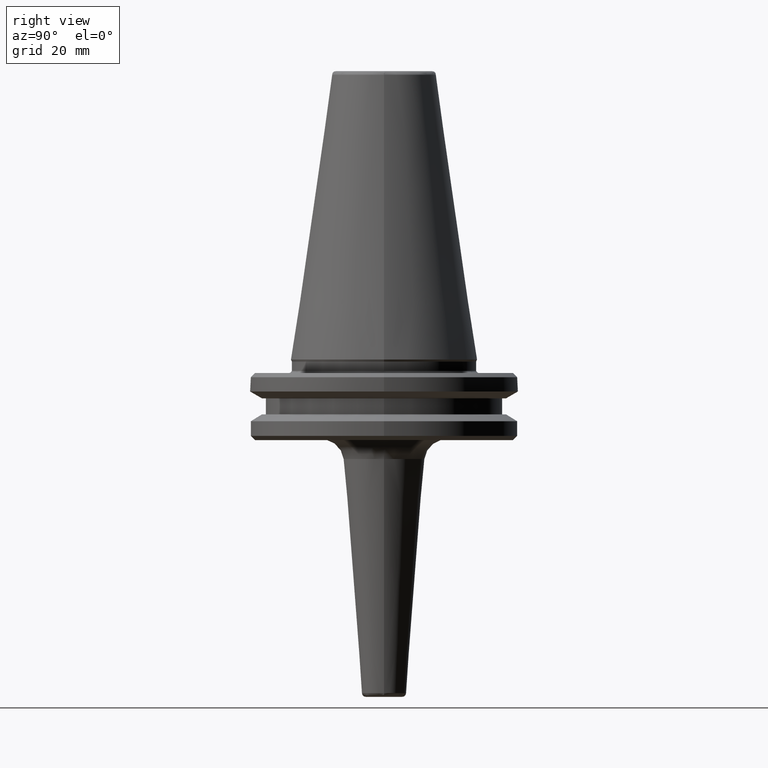
[diagram: clean part render]
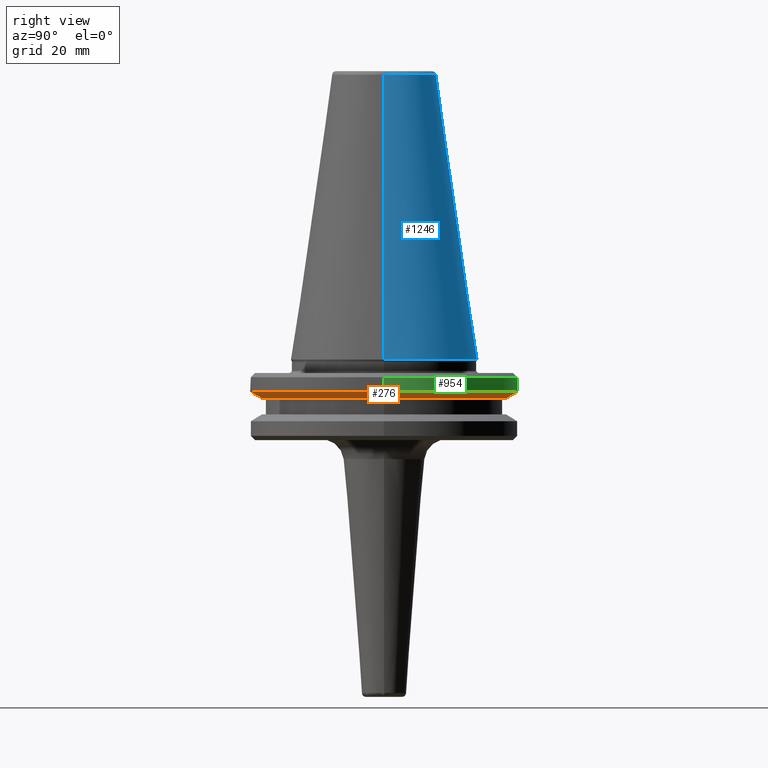
[diagram: same view with three faces highlighted in distinct colors, each labeled with its STEP entity id]
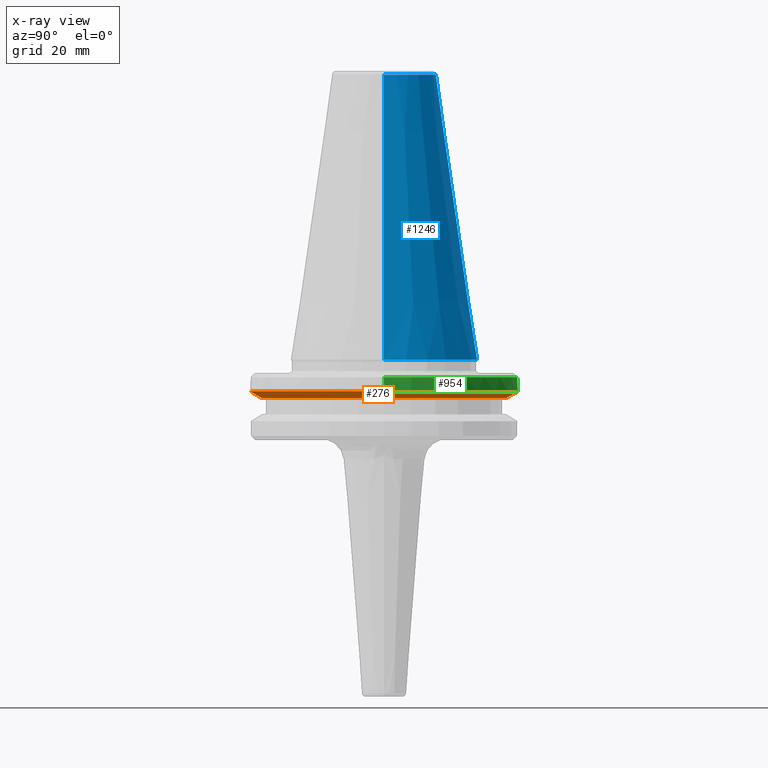
[diagram: x-ray of the same camera — body ghosted, the three highlighted faces saturated]
A machine part, right view with three faces highlighted in distinct colors.
The next image is the same camera in x-ray (body ghosted, the three faces saturated) — at least one of them is partly hidden behind the body in this view.
Their STEP definitions:

[orange] entity #276 — the highlighted conical surface has half-angle 60 deg.
#17 = CARTESIAN_POINT ( 'NONE',  ( 0.0000000000000000000, -31.75000000000000000, -7.578163357943284800 ) ) ;
#18 = CARTESIAN_POINT ( 'NONE',  ( 0.0000000000000000000, 2.215305588326933300E-017, -9.200000000000013500 ) ) ;
#46 = VERTEX_POINT ( 'NONE', #1240 ) ;
#73 = EDGE_CURVE ( 'NONE', #936, #497, #678, .T. ) ;
#108 = VECTOR ( 'NONE', #724, 1000.000000000000000 ) ;
#121 = FACE_OUTER_BOUND ( 'NONE', #1308, .T. ) ;
#124 = AXIS2_PLACEMENT_3D ( 'NONE', #18, #660, #808 ) ;
#176 = CARTESIAN_POINT ( 'NONE',  ( 0.0000000000000000000, -28.94089653438084400, -9.200000000000013500 ) ) ;
#218 = LINE ( 'NONE', #1173, #1267 ) ;
#260 = DIRECTION ( 'NONE',  ( 0.0000000000000000000, -0.8660254037844391500, 0.4999999999999991100 ) ) ;
#274 = VERTEX_POINT ( 'NONE', #378 ) ;
#276 = ADVANCED_FACE ( 'NONE', ( #121 ), #1097, .T. ) ;
#364 = LINE ( 'NONE', #947, #108 ) ;
#378 = CARTESIAN_POINT ( 'NONE',  ( 31.75000000000000000, 0.0000000000000000000, -7.578163357943284800 ) ) ;
#431 = VERTEX_POINT ( 'NONE', #17 ) ;
#497 = VERTEX_POINT ( 'NONE', #1126 ) ;
#526 = AXIS2_PLACEMENT_3D ( 'NONE', #946, #932, #923 ) ;
#541 = AXIS2_PLACEMENT_3D ( 'NONE', #1139, #1128, #1125 ) ;
#552 = DIRECTION ( 'NONE',  ( 0.0000000000000000000, -1.365923996832131300E-017, 1.000000000000000000 ) ) ;
#589 = AXIS2_PLACEMENT_3D ( 'NONE', #1290, #552, #1300 ) ;
#618 = ORIENTED_EDGE ( 'NONE', *, *, #1319, .F. ) ;
#660 = DIRECTION ( 'NONE',  ( 0.0000000000000000000, -1.365923996832131300E-017, 1.000000000000000000 ) ) ;
#670 = ORIENTED_EDGE ( 'NONE', *, *, #1080, .F. ) ;
#678 = CIRCLE ( 'NONE', #124, 28.94089653438084400 ) ;
#680 = EDGE_CURVE ( 'NONE', #497, #46, #364, .T. ) ;
#685 = CIRCLE ( 'NONE', #526, 31.75000000000000000 ) ;
#694 = EDGE_CURVE ( 'NONE', #274, #46, #1129, .T. ) ;
#724 = DIRECTION ( 'NONE',  ( 1.060575238724907500E-016, 0.8660254037844391500, 0.4999999999999991100 ) ) ;
#808 = DIRECTION ( 'NONE',  ( 0.0000000000000000000, -1.000000000000000000, 0.0000000000000000000 ) ) ;
#894 = ORIENTED_EDGE ( 'NONE', *, *, #694, .F. ) ;
#923 = DIRECTION ( 'NONE',  ( 1.000000000000000000, 0.0000000000000000000, 0.0000000000000000000 ) ) ;
#932 = DIRECTION ( 'NONE',  ( 0.0000000000000000000, 0.0000000000000000000, 1.000000000000000000 ) ) ;
#936 = VERTEX_POINT ( 'NONE', #176 ) ;
#946 = CARTESIAN_POINT ( 'NONE',  ( 0.0000000000000000000, 0.0000000000000000000, -7.578163357943284800 ) ) ;
#947 = CARTESIAN_POINT ( 'NONE',  ( 3.888253587292847300E-015, 31.75000000000000700, -7.578163357943281200 ) ) ;
#983 = ORIENTED_EDGE ( 'NONE', *, *, #680, .T. ) ;
#1080 = EDGE_CURVE ( 'NONE', #431, #274, #685, .T. ) ;
#1097 = CONICAL_SURFACE ( 'NONE', #589, 31.75000000000000700, 1.047197551196598700 ) ;
#1125 = DIRECTION ( 'NONE',  ( 1.000000000000000000, 0.0000000000000000000, 0.0000000000000000000 ) ) ;
#1126 = CARTESIAN_POINT ( 'NONE',  ( 3.716245608910634800E-015, 28.94089653438084400, -9.200000000000013500 ) ) ;
#1128 = DIRECTION ( 'NONE',  ( 0.0000000000000000000, 0.0000000000000000000, 1.000000000000000000 ) ) ;
#1129 = CIRCLE ( 'NONE', #541, 31.75000000000000000 ) ;
#1139 = CARTESIAN_POINT ( 'NONE',  ( 0.0000000000000000000, 0.0000000000000000000, -7.578163357943284800 ) ) ;
#1144 = ORIENTED_EDGE ( 'NONE', *, *, #73, .T. ) ;
#1173 = CARTESIAN_POINT ( 'NONE',  ( 0.0000000000000000000, -31.75000000000000700, -7.578163357943281200 ) ) ;
#1240 = CARTESIAN_POINT ( 'NONE',  ( 3.888253587292846500E-015, 31.75000000000000000, -7.578163357943284800 ) ) ;
#1267 = VECTOR ( 'NONE', #260, 1000.000000000000000 ) ;
#1290 = CARTESIAN_POINT ( 'NONE',  ( 0.0000000000000000000, 0.0000000000000000000, -7.578163357943281200 ) ) ;
#1300 = DIRECTION ( 'NONE',  ( 0.0000000000000000000, -1.000000000000000000, 0.0000000000000000000 ) ) ;
#1308 = EDGE_LOOP ( 'NONE', ( #1144, #983, #894, #670, #618 ) ) ;
#1319 = EDGE_CURVE ( 'NONE', #936, #431, #218, .T. ) ;

[blue] entity #1246 — the highlighted conical surface has half-angle 8.297 deg.
#37 = CARTESIAN_POINT ( 'NONE',  ( 0.0000000000000000000, 0.0000000000000000000, 0.0000000000000000000 ) ) ;
#100 = CARTESIAN_POINT ( 'NONE',  ( 12.37469537611110800, 2.118620309691396900E-015, 67.54430822726729400 ) ) ;
#127 = EDGE_CURVE ( 'NONE', #696, #299, #669, .T. ) ;
#157 = DIRECTION ( 'NONE',  ( -1.000000000000000000, 0.0000000000000000000, 6.244223985518314900E-016 ) ) ;
#164 = DIRECTION ( 'NONE',  ( -0.0000000000000000000, -0.0000000000000000000, 1.000000000000000000 ) ) ;
#174 = CARTESIAN_POINT ( 'NONE',  ( 0.0000000000000000000, 0.0000000000000000000, 0.0000000000000000000 ) ) ;
#247 = EDGE_CURVE ( 'NONE', #452, #415, #479, .T. ) ;
#254 = ORIENTED_EDGE ( 'NONE', *, *, #557, .T. ) ;
#264 = VECTOR ( 'NONE', #698, 1000.000000000000000 ) ;
#299 = VERTEX_POINT ( 'NONE', #941 ) ;
#307 = EDGE_LOOP ( 'NONE', ( #1208, #254, #975, #868 ) ) ;
#354 = DIRECTION ( 'NONE',  ( 0.0000000000000000000, 0.0000000000000000000, -1.000000000000000000 ) ) ;
#400 = VECTOR ( 'NONE', #625, 1000.000000000000000 ) ;
#415 = VERTEX_POINT ( 'NONE', #100 ) ;
#449 = CARTESIAN_POINT ( 'NONE',  ( 0.0000000000000000000, 0.0000000000000000000, 67.54430822726729400 ) ) ;
#452 = VERTEX_POINT ( 'NONE', #1120 ) ;
#479 = CIRCLE ( 'NONE', #1069, 12.37469537611110800 ) ;
#546 = LINE ( 'NONE', #1285, #264 ) ;
#557 = EDGE_CURVE ( 'NONE', #415, #696, #679, .T. ) ;
#625 = DIRECTION ( 'NONE',  ( 0.1443082272673070500, 1.767266086135363700E-017, -0.9895327864921743500 ) ) ;
#669 = CIRCLE ( 'NONE', #875, 22.22500000000000100 ) ;
#679 = LINE ( 'NONE', #707, #400 ) ;
#696 = VERTEX_POINT ( 'NONE', #731 ) ;
#698 = DIRECTION ( 'NONE',  ( -0.1443082272673070500, 0.0000000000000000000, -0.9895327864921743500 ) ) ;
#707 = CARTESIAN_POINT ( 'NONE',  ( 22.22500000000000100, 2.721777511104992800E-015, 0.0000000000000000000 ) ) ;
#731 = CARTESIAN_POINT ( 'NONE',  ( 22.22500000000000500, 0.0000000000000000000, 0.0000000000000000000 ) ) ;
#752 = AXIS2_PLACEMENT_3D ( 'NONE', #37, #1039, #939 ) ;
#772 = EDGE_CURVE ( 'NONE', #452, #299, #546, .T. ) ;
#867 = DIRECTION ( 'NONE',  ( -1.000000000000000000, 0.0000000000000000000, 0.0000000000000000000 ) ) ;
#868 = ORIENTED_EDGE ( 'NONE', *, *, #772, .F. ) ;
#872 = FACE_OUTER_BOUND ( 'NONE', #307, .T. ) ;
#875 = AXIS2_PLACEMENT_3D ( 'NONE', #174, #164, #157 ) ;
#939 = DIRECTION ( 'NONE',  ( -1.000000000000000000, 0.0000000000000000000, 0.0000000000000000000 ) ) ;
#941 = CARTESIAN_POINT ( 'NONE',  ( -22.22500000000000500, 2.721777511104993200E-015, 0.0000000000000000000 ) ) ;
#975 = ORIENTED_EDGE ( 'NONE', *, *, #127, .T. ) ;
#1039 = DIRECTION ( 'NONE',  ( 0.0000000000000000000, 0.0000000000000000000, -1.000000000000000000 ) ) ;
#1069 = AXIS2_PLACEMENT_3D ( 'NONE', #449, #354, #867 ) ;
#1120 = CARTESIAN_POINT ( 'NONE',  ( -12.37469537611110800, 0.0000000000000000000, 67.54430822726729400 ) ) ;
#1208 = ORIENTED_EDGE ( 'NONE', *, *, #247, .T. ) ;
#1246 = ADVANCED_FACE ( 'NONE', ( #872 ), #1318, .T. ) ;
#1285 = CARTESIAN_POINT ( 'NONE',  ( -22.22500000000000100, 0.0000000000000000000, 0.0000000000000000000 ) ) ;
#1318 = CONICAL_SURFACE ( 'NONE', #752, 22.22500000000000100, 0.1448138465474190500 ) ;

[green] entity #954 — the highlighted cylindrical surface (partial cylindrical patch) has radius 31.75 mm, axis along (0, 0, 1).
#16 = AXIS2_PLACEMENT_3D ( 'NONE', #412, #408, #401 ) ;
#27 = CARTESIAN_POINT ( 'NONE',  ( 31.75000000000005700, 0.0000000000000000000, -4.200000000000148500 ) ) ;
#38 = ORIENTED_EDGE ( 'NONE', *, *, #791, .F. ) ;
#46 = VERTEX_POINT ( 'NONE', #1240 ) ;
#87 = ORIENTED_EDGE ( 'NONE', *, *, #694, .T. ) ;
#96 = ORIENTED_EDGE ( 'NONE', *, *, #1248, .T. ) ;
#221 = CARTESIAN_POINT ( 'NONE',  ( -31.75000000000000000, 3.888253587292846500E-015, 113.5216080541959500 ) ) ;
#274 = VERTEX_POINT ( 'NONE', #378 ) ;
#279 = DIRECTION ( 'NONE',  ( 0.0000000000000000000, 0.0000000000000000000, 1.000000000000000000 ) ) ;
#280 = CIRCLE ( 'NONE', #296, 31.75000000000000000 ) ;
#288 = CARTESIAN_POINT ( 'NONE',  ( 31.75000000000000000, 0.0000000000000000000, 113.5216080541959500 ) ) ;
#296 = AXIS2_PLACEMENT_3D ( 'NONE', #523, #327, #316 ) ;
#316 = DIRECTION ( 'NONE',  ( 1.000000000000000000, 0.0000000000000000000, 0.0000000000000000000 ) ) ;
#327 = DIRECTION ( 'NONE',  ( 0.0000000000000000000, 0.0000000000000000000, 1.000000000000000000 ) ) ;
#378 = CARTESIAN_POINT ( 'NONE',  ( 31.75000000000000000, 0.0000000000000000000, -7.578163357943284800 ) ) ;
#385 = ORIENTED_EDGE ( 'NONE', *, *, #1135, .F. ) ;
#401 = DIRECTION ( 'NONE',  ( 1.000000000000000000, 0.0000000000000000000, 0.0000000000000000000 ) ) ;
#408 = DIRECTION ( 'NONE',  ( -0.0000000000000000000, -0.0000000000000000000, 1.000000000000000000 ) ) ;
#412 = CARTESIAN_POINT ( 'NONE',  ( 0.0000000000000000000, 0.0000000000000000000, -4.200000000000148500 ) ) ;
#518 = VERTEX_POINT ( 'NONE', #852 ) ;
#523 = CARTESIAN_POINT ( 'NONE',  ( 0.0000000000000000000, 0.0000000000000000000, -7.578163357943284800 ) ) ;
#541 = AXIS2_PLACEMENT_3D ( 'NONE', #1139, #1128, #1125 ) ;
#627 = DIRECTION ( 'NONE',  ( 0.0000000000000000000, 0.0000000000000000000, 1.000000000000000000 ) ) ;
#648 = AXIS2_PLACEMENT_3D ( 'NONE', #1260, #1160, #1156 ) ;
#688 = ORIENTED_EDGE ( 'NONE', *, *, #1298, .T. ) ;
#694 = EDGE_CURVE ( 'NONE', #274, #46, #1129, .T. ) ;
#716 = CYLINDRICAL_SURFACE ( 'NONE', #648, 31.75000000000000000 ) ;
#750 = CARTESIAN_POINT ( 'NONE',  ( -31.75000000000000000, 3.888253587292846500E-015, -7.578163357943284800 ) ) ;
#757 = VERTEX_POINT ( 'NONE', #750 ) ;
#791 = EDGE_CURVE ( 'NONE', #274, #1088, #1073, .T. ) ;
#804 = VECTOR ( 'NONE', #627, 1000.000000000000000 ) ;
#834 = LINE ( 'NONE', #221, #804 ) ;
#852 = CARTESIAN_POINT ( 'NONE',  ( -31.75000000000005700, 3.888253587292853600E-015, -4.200000000000148500 ) ) ;
#907 = EDGE_LOOP ( 'NONE', ( #96, #688, #385, #38, #87 ) ) ;
#954 = ADVANCED_FACE ( 'NONE', ( #1250 ), #716, .T. ) ;
#1073 = LINE ( 'NONE', #288, #1280 ) ;
#1088 = VERTEX_POINT ( 'NONE', #27 ) ;
#1125 = DIRECTION ( 'NONE',  ( 1.000000000000000000, 0.0000000000000000000, 0.0000000000000000000 ) ) ;
#1128 = DIRECTION ( 'NONE',  ( 0.0000000000000000000, 0.0000000000000000000, 1.000000000000000000 ) ) ;
#1129 = CIRCLE ( 'NONE', #541, 31.75000000000000000 ) ;
#1135 = EDGE_CURVE ( 'NONE', #1088, #518, #1178, .T. ) ;
#1139 = CARTESIAN_POINT ( 'NONE',  ( 0.0000000000000000000, 0.0000000000000000000, -7.578163357943284800 ) ) ;
#1156 = DIRECTION ( 'NONE',  ( 1.000000000000000000, 0.0000000000000000000, 0.0000000000000000000 ) ) ;
#1160 = DIRECTION ( 'NONE',  ( 0.0000000000000000000, 0.0000000000000000000, 1.000000000000000000 ) ) ;
#1178 = CIRCLE ( 'NONE', #16, 31.75000000000005700 ) ;
#1240 = CARTESIAN_POINT ( 'NONE',  ( 3.888253587292846500E-015, 31.75000000000000000, -7.578163357943284800 ) ) ;
#1248 = EDGE_CURVE ( 'NONE', #46, #757, #280, .T. ) ;
#1250 = FACE_OUTER_BOUND ( 'NONE', #907, .T. ) ;
#1260 = CARTESIAN_POINT ( 'NONE',  ( 0.0000000000000000000, 0.0000000000000000000, 113.5216080541959500 ) ) ;
#1280 = VECTOR ( 'NONE', #279, 1000.000000000000000 ) ;
#1298 = EDGE_CURVE ( 'NONE', #757, #518, #834, .T. ) ;